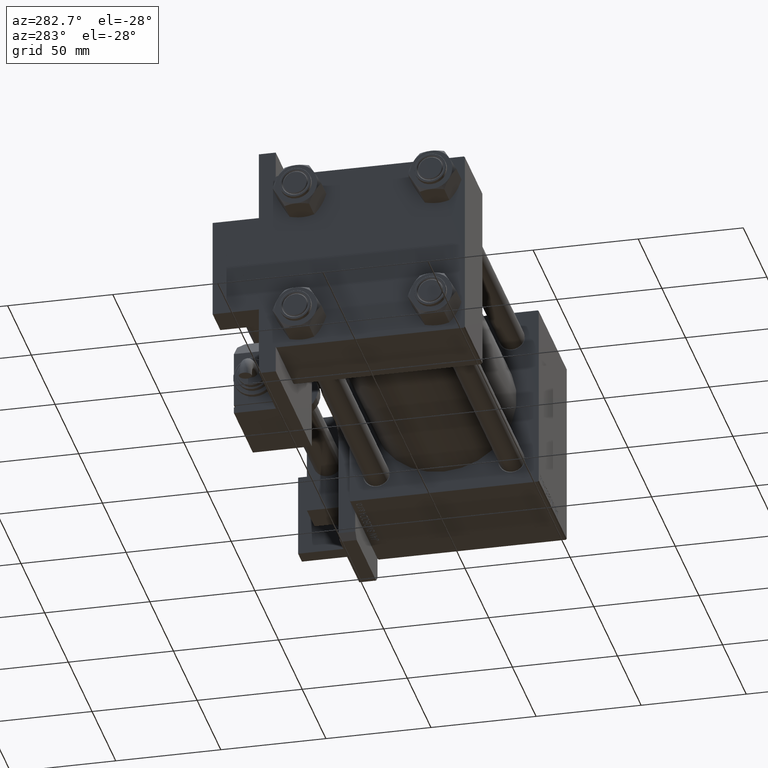
[diagram: clean part render]
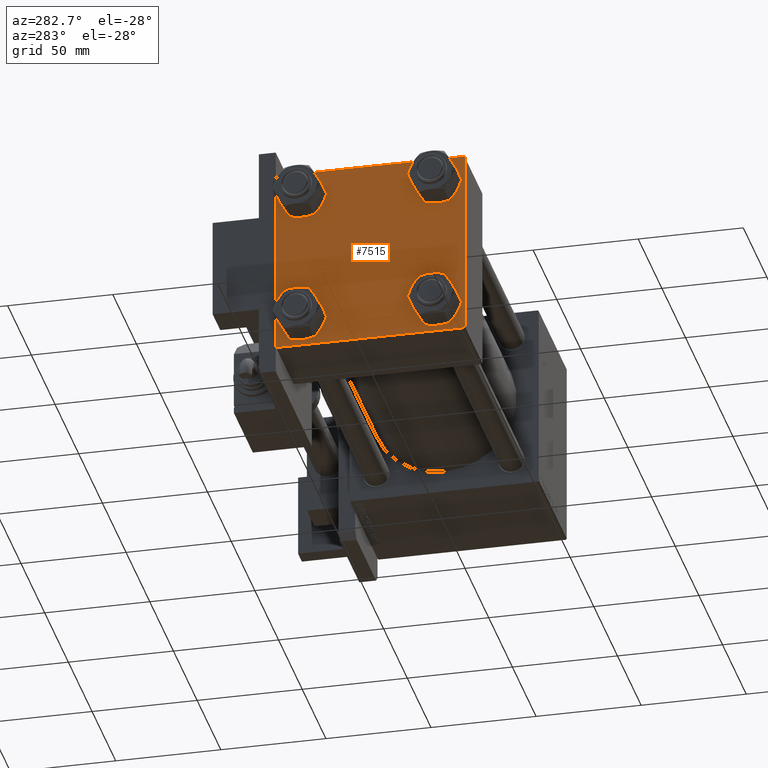
[diagram: same view with one face highlighted and labeled with its STEP entity id]
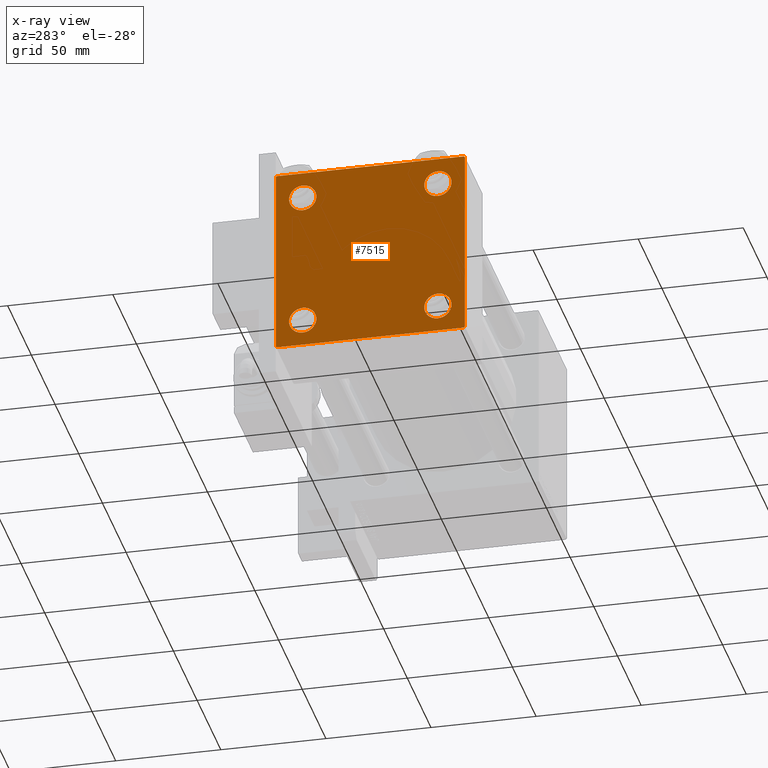
[diagram: x-ray of the same camera — body ghosted, the highlighted face saturated]
A machine part, auxiliary view. The second image highlights one B-rep face of the part: STEP entity #7515.
The next image is the same camera in x-ray: the body ghosted, the highlighted face saturated — about 0% of this face is hidden behind the body in this view.
In plain terms, the highlighted planar face has unit normal (-1, 0, 0).
Its self-contained STEP definition (entity closure, byte-faithful):
#154 = AXIS2_PLACEMENT_3D ( 'NONE', #22790, #10351, #19108 ) ;
#155 = CARTESIAN_POINT ( 'NONE',  ( 0.000000000000000000, 32.14999999999999147, 38.65000000000001990 ) ) ;
#397 = VERTEX_POINT ( 'NONE', #36689 ) ;
#569 = ORIENTED_EDGE ( 'NONE', *, *, #16845, .T. ) ;
#805 = DIRECTION ( 'NONE',  ( 0.000000000000000000, 0.7071067811865574537, -0.7071067811865376918 ) ) ;
#1736 = EDGE_LOOP ( 'NONE', ( #7311, #21330 ) ) ;
#2162 = AXIS2_PLACEMENT_3D ( 'NONE', #42799, #17614, #9121 ) ;
#2406 = VERTEX_POINT ( 'NONE', #23662 ) ;
#2422 = CARTESIAN_POINT ( 'NONE',  ( 0.000000000000000000, 44.74999999999999289, -44.74999999999999289 ) ) ;
#2624 = VECTOR ( 'NONE', #30161, 1000.000000000000000 ) ;
#2677 = CARTESIAN_POINT ( 'NONE',  ( 0.000000000000000000, -44.49999999999997158, 44.99999999999998579 ) ) ;
#3045 = ORIENTED_EDGE ( 'NONE', *, *, #27631, .T. ) ;
#4514 = CARTESIAN_POINT ( 'NONE',  ( 0.000000000000000000, -32.14999999999997726, -25.65000000000002700 ) ) ;
#4603 = FACE_BOUND ( 'NONE', #44789, .T. ) ;
#4854 = DIRECTION ( 'NONE',  ( -0.000000000000000000, 0.7071067811865474617, 0.7071067811865474617 ) ) ;
#5334 = CIRCLE ( 'NONE', #29719, 6.499999999999977796 ) ;
#5701 = LINE ( 'NONE', #22943, #44660 ) ;
#7311 = ORIENTED_EDGE ( 'NONE', *, *, #14890, .T. ) ;
#7505 = DIRECTION ( 'NONE',  ( -0.000000000000000000, -0.7071067811865474617, -0.7071067811865474617 ) ) ;
#7511 = CARTESIAN_POINT ( 'NONE',  ( 0.000000000000000000, -32.14999999999997726, 38.64999999999999147 ) ) ;
#7515 = ADVANCED_FACE ( 'NONE', ( #52100, #4603, #47047, #30613, #21842 ), #8294, .T. ) ;
#7812 = CARTESIAN_POINT ( 'NONE',  ( 0.000000000000000000, 45.00000000000000000, 45.00000000000000711 ) ) ;
#8290 = VERTEX_POINT ( 'NONE', #55668 ) ;
#8294 = PLANE ( 'NONE',  #2162 ) ;
#8653 = CIRCLE ( 'NONE', #50183, 6.500000000000019540 ) ;
#8825 = CARTESIAN_POINT ( 'NONE',  ( 0.000000000000000000, 44.50000000000000000, -44.99999999999999289 ) ) ;
#8897 = EDGE_CURVE ( 'NONE', #21784, #45164, #32351, .T. ) ;
#9121 = DIRECTION ( 'NONE',  ( -0.000000000000000000, 0.000000000000000000, 1.000000000000000000 ) ) ;
#9297 = EDGE_CURVE ( 'NONE', #397, #8290, #54764, .T. ) ;
#9833 = DIRECTION ( 'NONE',  ( 0.000000000000000000, 0.000000000000000000, 1.000000000000000000 ) ) ;
#10119 = DIRECTION ( 'NONE',  ( 1.000000000000000000, -0.000000000000000000, 0.000000000000000000 ) ) ;
#10351 = DIRECTION ( 'NONE',  ( 1.000000000000000000, -0.000000000000000000, 0.000000000000000000 ) ) ;
#10574 = DIRECTION ( 'NONE',  ( 0.000000000000000000, -0.7071067811865672237, 0.7071067811865279218 ) ) ;
#10748 = VERTEX_POINT ( 'NONE', #34332 ) ;
#12908 = ORIENTED_EDGE ( 'NONE', *, *, #51997, .T. ) ;
#12954 = CARTESIAN_POINT ( 'NONE',  ( 0.000000000000000000, -45.00000000000000000, -44.49999999999997158 ) ) ;
#13445 = LINE ( 'NONE', #17697, #2624 ) ;
#13450 = ORIENTED_EDGE ( 'NONE', *, *, #8897, .T. ) ;
#13531 = CARTESIAN_POINT ( 'NONE',  ( 0.000000000000000000, 32.14999999999999147, 32.14999999999999858 ) ) ;
#13970 = AXIS2_PLACEMENT_3D ( 'NONE', #31429, #35120, #31996 ) ;
#14659 = VECTOR ( 'NONE', #32988, 1000.000000000000000 ) ;
#14890 = EDGE_CURVE ( 'NONE', #35736, #47045, #40108, .T. ) ;
#15197 = EDGE_LOOP ( 'NONE', ( #569, #33066 ) ) ;
#15639 = ORIENTED_EDGE ( 'NONE', *, *, #42449, .T. ) ;
#16740 = LINE ( 'NONE', #25214, #18838 ) ;
#16845 = EDGE_CURVE ( 'NONE', #54186, #30600, #21208, .T. ) ;
#16912 = EDGE_CURVE ( 'NONE', #43871, #45164, #5701, .T. ) ;
#17614 = DIRECTION ( 'NONE',  ( -1.000000000000000000, 0.000000000000000000, -0.000000000000000000 ) ) ;
#17697 = CARTESIAN_POINT ( 'NONE',  ( 0.000000000000000000, 45.00000000000000000, -44.99999999999999289 ) ) ;
#17976 = CARTESIAN_POINT ( 'NONE',  ( 0.000000000000000000, 32.14999999999999147, -32.14999999999999858 ) ) ;
#18146 = DIRECTION ( 'NONE',  ( 0.000000000000000000, 0.000000000000000000, 1.000000000000000000 ) ) ;
#18248 = DIRECTION ( 'NONE',  ( 1.000000000000000000, -0.000000000000000000, 0.000000000000000000 ) ) ;
#18838 = VECTOR ( 'NONE', #33142, 1000.000000000000000 ) ;
#19108 = DIRECTION ( 'NONE',  ( 0.000000000000000000, 0.000000000000000000, 1.000000000000000000 ) ) ;
#19241 = EDGE_CURVE ( 'NONE', #2406, #24293, #45670, .T. ) ;
#19499 = EDGE_CURVE ( 'NONE', #10748, #40658, #8653, .T. ) ;
#19990 = VECTOR ( 'NONE', #4854, 1000.000000000000114 ) ;
#20171 = ORIENTED_EDGE ( 'NONE', *, *, #19241, .T. ) ;
#21208 = CIRCLE ( 'NONE', #13970, 6.500000000000019540 ) ;
#21330 = ORIENTED_EDGE ( 'NONE', *, *, #26461, .T. ) ;
#21440 = CIRCLE ( 'NONE', #40364, 6.499999999999977796 ) ;
#21784 = VERTEX_POINT ( 'NONE', #32476 ) ;
#21842 = FACE_OUTER_BOUND ( 'NONE', #47686, .T. ) ;
#22293 = LINE ( 'NONE', #44083, #47689 ) ;
#22615 = EDGE_CURVE ( 'NONE', #30600, #54186, #46728, .T. ) ;
#22618 = CARTESIAN_POINT ( 'NONE',  ( 0.000000000000000000, -32.14999999999997726, 32.15000000000000568 ) ) ;
#22790 = CARTESIAN_POINT ( 'NONE',  ( 0.000000000000000000, 32.14999999999999147, -32.14999999999999858 ) ) ;
#22806 = VECTOR ( 'NONE', #10574, 1000.000000000000000 ) ;
#22943 = CARTESIAN_POINT ( 'NONE',  ( 0.000000000000000000, -45.00000000000000000, 44.99999999999998579 ) ) ;
#23662 = CARTESIAN_POINT ( 'NONE',  ( 0.000000000000000000, -32.14999999999997726, -38.64999999999998437 ) ) ;
#24008 = AXIS2_PLACEMENT_3D ( 'NONE', #13531, #10119, #30781 ) ;
#24293 = VERTEX_POINT ( 'NONE', #4514 ) ;
#24561 = EDGE_LOOP ( 'NONE', ( #12908, #30606 ) ) ;
#25173 = ORIENTED_EDGE ( 'NONE', *, *, #34191, .T. ) ;
#25205 = CARTESIAN_POINT ( 'NONE',  ( 0.000000000000000000, 32.14999999999999147, 25.64999999999997726 ) ) ;
#25214 = CARTESIAN_POINT ( 'NONE',  ( 0.000000000000000000, 45.00000000000000000, 45.00000000000000711 ) ) ;
#26263 = ORIENTED_EDGE ( 'NONE', *, *, #41678, .F. ) ;
#26461 = EDGE_CURVE ( 'NONE', #47045, #35736, #21440, .T. ) ;
#26605 = DIRECTION ( 'NONE',  ( 0.000000000000000000, 0.000000000000000000, 1.000000000000000000 ) ) ;
#26619 = CARTESIAN_POINT ( 'NONE',  ( -0.000000000000000000, -44.74999999999999289, 44.74999999999999289 ) ) ;
#26805 = DIRECTION ( 'NONE',  ( 1.000000000000000000, -0.000000000000000000, 0.000000000000000000 ) ) ;
#27253 = CARTESIAN_POINT ( 'NONE',  ( 0.000000000000000000, 44.49999999999997158, 45.00000000000000711 ) ) ;
#27527 = ORIENTED_EDGE ( 'NONE', *, *, #9297, .T. ) ;
#27631 = EDGE_CURVE ( 'NONE', #38581, #397, #22293, .T. ) ;
#28266 = ORIENTED_EDGE ( 'NONE', *, *, #30182, .T. ) ;
#29719 = AXIS2_PLACEMENT_3D ( 'NONE', #39924, #35125, #18146 ) ;
#30161 = DIRECTION ( 'NONE',  ( 0.000000000000000000, -1.000000000000000000, -7.709882115452476934E-17 ) ) ;
#30182 = EDGE_CURVE ( 'NONE', #51132, #21784, #13445, .T. ) ;
#30468 = DIRECTION ( 'NONE',  ( 1.000000000000000000, -0.000000000000000000, 0.000000000000000000 ) ) ;
#30600 = VERTEX_POINT ( 'NONE', #25205 ) ;
#30606 = ORIENTED_EDGE ( 'NONE', *, *, #19499, .T. ) ;
#30613 = FACE_BOUND ( 'NONE', #15197, .T. ) ;
#30781 = DIRECTION ( 'NONE',  ( 0.000000000000000000, 0.000000000000000000, 1.000000000000000000 ) ) ;
#31053 = CARTESIAN_POINT ( 'NONE',  ( 0.000000000000000000, -32.14999999999997726, -32.15000000000000568 ) ) ;
#31429 = CARTESIAN_POINT ( 'NONE',  ( 0.000000000000000000, 32.14999999999999147, 32.14999999999999858 ) ) ;
#31996 = DIRECTION ( 'NONE',  ( 0.000000000000000000, 0.000000000000000000, 1.000000000000000000 ) ) ;
#32234 = DIRECTION ( 'NONE',  ( 1.000000000000000000, -0.000000000000000000, 0.000000000000000000 ) ) ;
#32351 = LINE ( 'NONE', #54404, #22806 ) ;
#32476 = CARTESIAN_POINT ( 'NONE',  ( 0.000000000000000000, -44.49999999999994316, -45.00000000000000000 ) ) ;
#32988 = DIRECTION ( 'NONE',  ( 0.000000000000000000, 0.000000000000000000, -1.000000000000000000 ) ) ;
#33066 = ORIENTED_EDGE ( 'NONE', *, *, #22615, .T. ) ;
#33142 = DIRECTION ( 'NONE',  ( 0.000000000000000000, -1.000000000000000000, -2.312964634635742957E-16 ) ) ;
#34191 = EDGE_CURVE ( 'NONE', #43871, #41416, #48660, .T. ) ;
#34332 = CARTESIAN_POINT ( 'NONE',  ( 0.000000000000000000, 32.14999999999999147, -38.65000000000001990 ) ) ;
#35120 = DIRECTION ( 'NONE',  ( 1.000000000000000000, -0.000000000000000000, 0.000000000000000000 ) ) ;
#35125 = DIRECTION ( 'NONE',  ( 1.000000000000000000, -0.000000000000000000, 0.000000000000000000 ) ) ;
#35224 = DIRECTION ( 'NONE',  ( 0.000000000000000000, 0.000000000000000000, 1.000000000000000000 ) ) ;
#35729 = AXIS2_PLACEMENT_3D ( 'NONE', #31053, #26805, #9833 ) ;
#35736 = VERTEX_POINT ( 'NONE', #7511 ) ;
#36689 = CARTESIAN_POINT ( 'NONE',  ( 0.000000000000000000, 45.00000000000000000, 44.49999999999999289 ) ) ;
#36740 = CARTESIAN_POINT ( 'NONE',  ( 0.000000000000000000, -45.00000000000000000, 44.49999999999998579 ) ) ;
#37246 = EDGE_CURVE ( 'NONE', #8290, #51132, #49927, .T. ) ;
#37655 = CARTESIAN_POINT ( 'NONE',  ( 0.000000000000000000, -32.14999999999997726, 25.65000000000002700 ) ) ;
#38289 = AXIS2_PLACEMENT_3D ( 'NONE', #39499, #30468, #44034 ) ;
#38581 = VERTEX_POINT ( 'NONE', #27253 ) ;
#39499 = CARTESIAN_POINT ( 'NONE',  ( 0.000000000000000000, -32.14999999999997726, 32.15000000000000568 ) ) ;
#39924 = CARTESIAN_POINT ( 'NONE',  ( 0.000000000000000000, -32.14999999999997726, -32.15000000000000568 ) ) ;
#40108 = CIRCLE ( 'NONE', #38289, 6.499999999999977796 ) ;
#40364 = AXIS2_PLACEMENT_3D ( 'NONE', #22618, #32234, #26605 ) ;
#40658 = VERTEX_POINT ( 'NONE', #47947 ) ;
#41416 = VERTEX_POINT ( 'NONE', #2677 ) ;
#41678 = EDGE_CURVE ( 'NONE', #38581, #41416, #16740, .T. ) ;
#42449 = EDGE_CURVE ( 'NONE', #24293, #2406, #5334, .T. ) ;
#42799 = CARTESIAN_POINT ( 'NONE',  ( 0.000000000000000000, 0.000000000000000000, 0.000000000000000000 ) ) ;
#43871 = VERTEX_POINT ( 'NONE', #36740 ) ;
#44034 = DIRECTION ( 'NONE',  ( 0.000000000000000000, 0.000000000000000000, 1.000000000000000000 ) ) ;
#44083 = CARTESIAN_POINT ( 'NONE',  ( 0.000000000000000000, 44.74999999999936762, 44.75000000000061107 ) ) ;
#44660 = VECTOR ( 'NONE', #49236, 1000.000000000000000 ) ;
#44789 = EDGE_LOOP ( 'NONE', ( #15639, #20171 ) ) ;
#45164 = VERTEX_POINT ( 'NONE', #12954 ) ;
#45670 = CIRCLE ( 'NONE', #35729, 6.499999999999977796 ) ;
#46728 = CIRCLE ( 'NONE', #24008, 6.500000000000019540 ) ;
#47045 = VERTEX_POINT ( 'NONE', #37655 ) ;
#47047 = FACE_BOUND ( 'NONE', #24561, .T. ) ;
#47686 = EDGE_LOOP ( 'NONE', ( #27527, #52023, #28266, #13450, #49720, #25173, #26263, #3045 ) ) ;
#47689 = VECTOR ( 'NONE', #805, 999.9999999999998863 ) ;
#47947 = CARTESIAN_POINT ( 'NONE',  ( 0.000000000000000000, 32.14999999999999147, -25.64999999999997726 ) ) ;
#48660 = LINE ( 'NONE', #26619, #19990 ) ;
#49236 = DIRECTION ( 'NONE',  ( 0.000000000000000000, 0.000000000000000000, -1.000000000000000000 ) ) ;
#49324 = VECTOR ( 'NONE', #7505, 1000.000000000000114 ) ;
#49720 = ORIENTED_EDGE ( 'NONE', *, *, #16912, .F. ) ;
#49848 = CIRCLE ( 'NONE', #154, 6.500000000000019540 ) ;
#49927 = LINE ( 'NONE', #2422, #49324 ) ;
#50183 = AXIS2_PLACEMENT_3D ( 'NONE', #17976, #18248, #35224 ) ;
#51132 = VERTEX_POINT ( 'NONE', #8825 ) ;
#51997 = EDGE_CURVE ( 'NONE', #40658, #10748, #49848, .T. ) ;
#52023 = ORIENTED_EDGE ( 'NONE', *, *, #37246, .T. ) ;
#52100 = FACE_BOUND ( 'NONE', #1736, .T. ) ;
#54186 = VERTEX_POINT ( 'NONE', #155 ) ;
#54404 = CARTESIAN_POINT ( 'NONE',  ( 0.000000000000000000, -44.74999999999873523, -44.75000000000122924 ) ) ;
#54764 = LINE ( 'NONE', #7812, #14659 ) ;
#55668 = CARTESIAN_POINT ( 'NONE',  ( 0.000000000000000000, 45.00000000000000000, -44.49999999999996447 ) ) ;